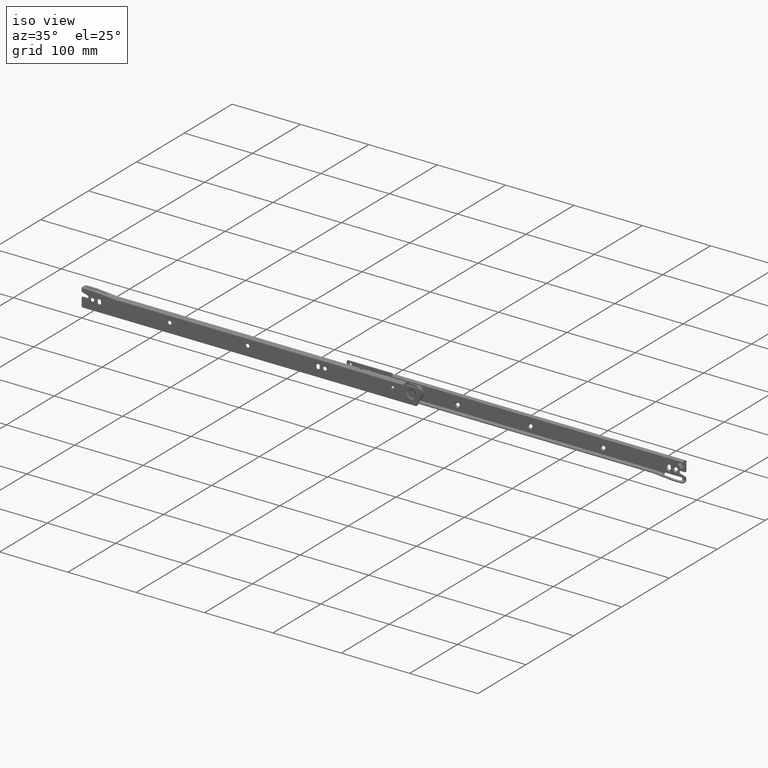
[diagram: clean part render]
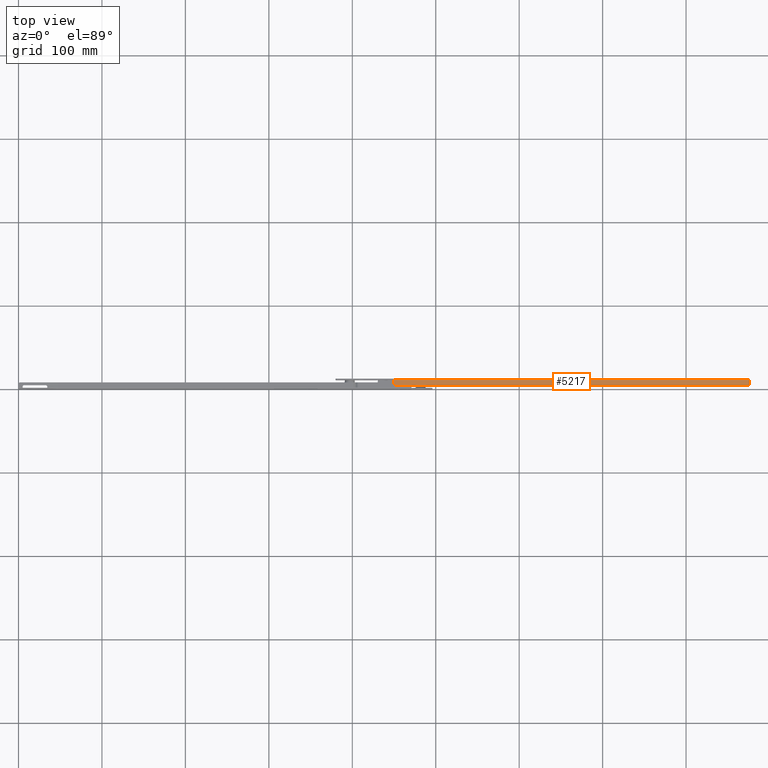
[diagram: tour spotlight — one face highlighted and labeled with its STEP entity id]
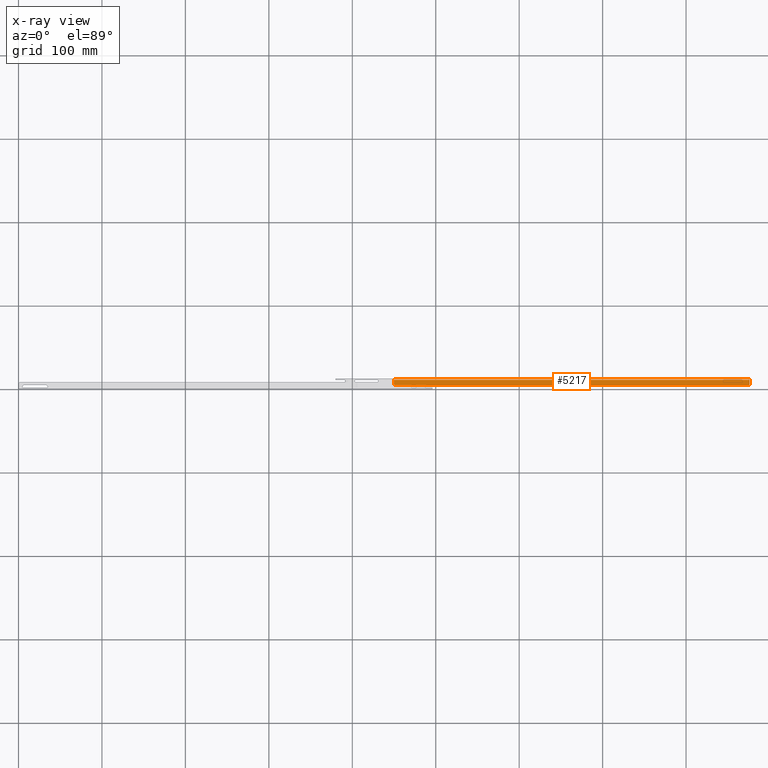
[diagram: x-ray of the same camera — body ghosted, this tour face saturated]
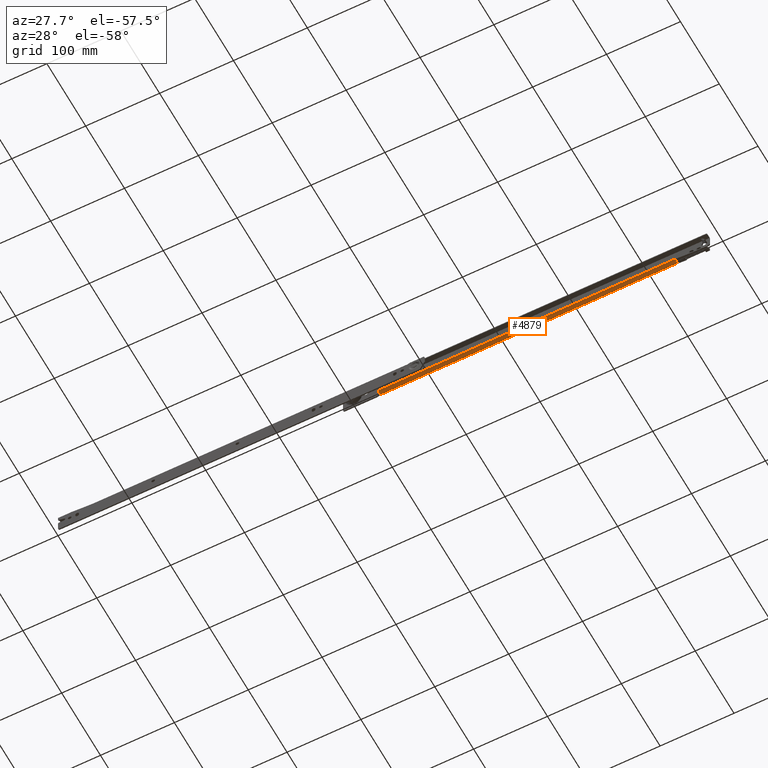
[diagram: tour spotlight — one face highlighted and labeled with its STEP entity id]
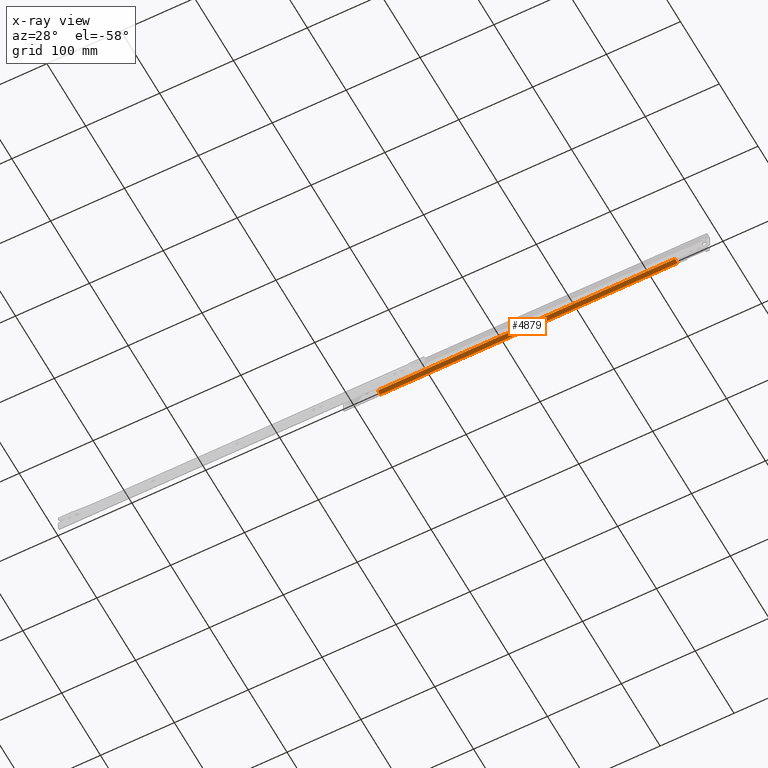
[diagram: x-ray of the same camera — body ghosted, this tour face saturated]
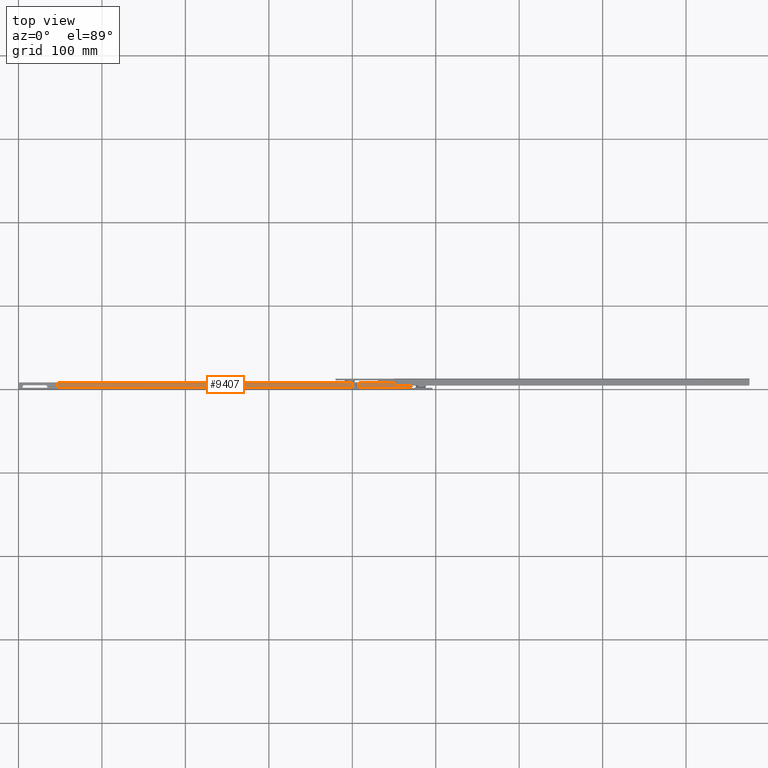
[diagram: tour spotlight — one face highlighted and labeled with its STEP entity id]
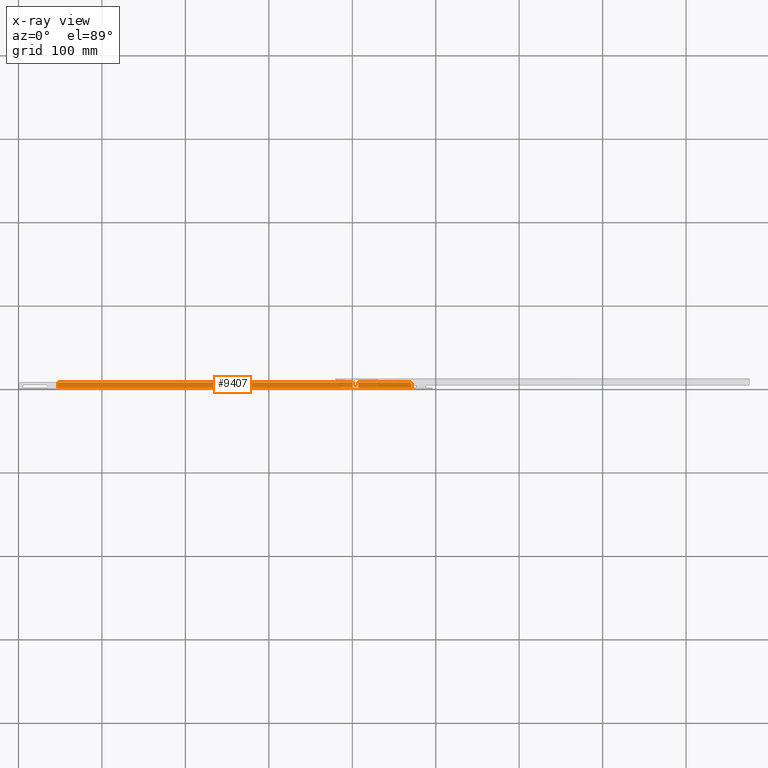
[diagram: x-ray of the same camera — body ghosted, this tour face saturated]
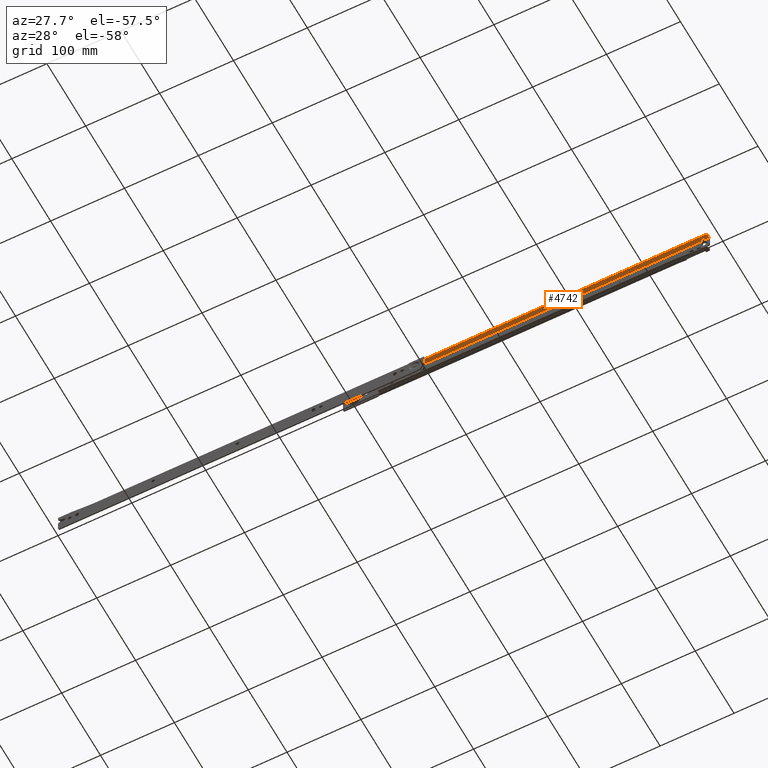
[diagram: tour spotlight — one face highlighted and labeled with its STEP entity id]
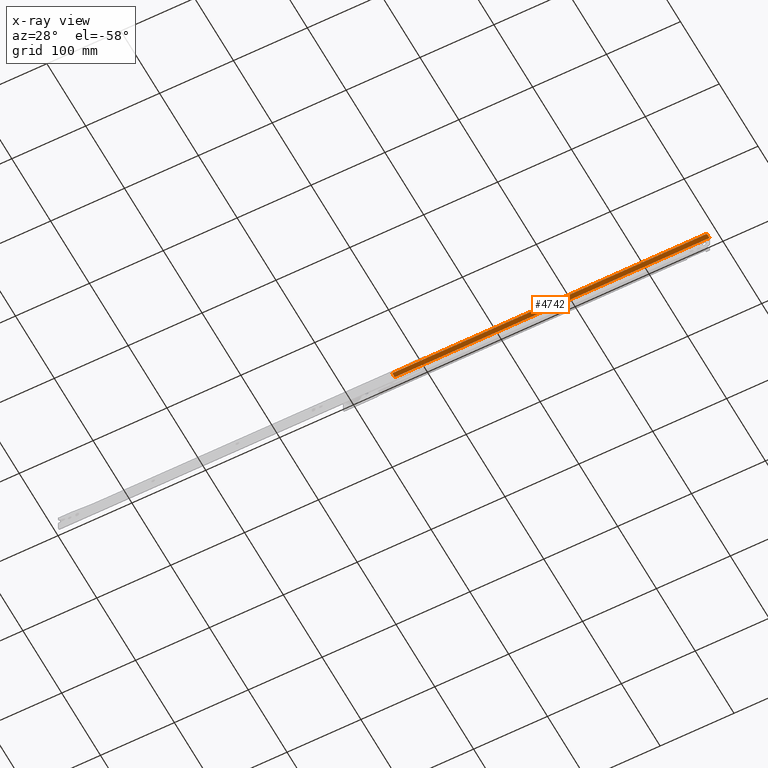
[diagram: x-ray of the same camera — body ghosted, this tour face saturated]
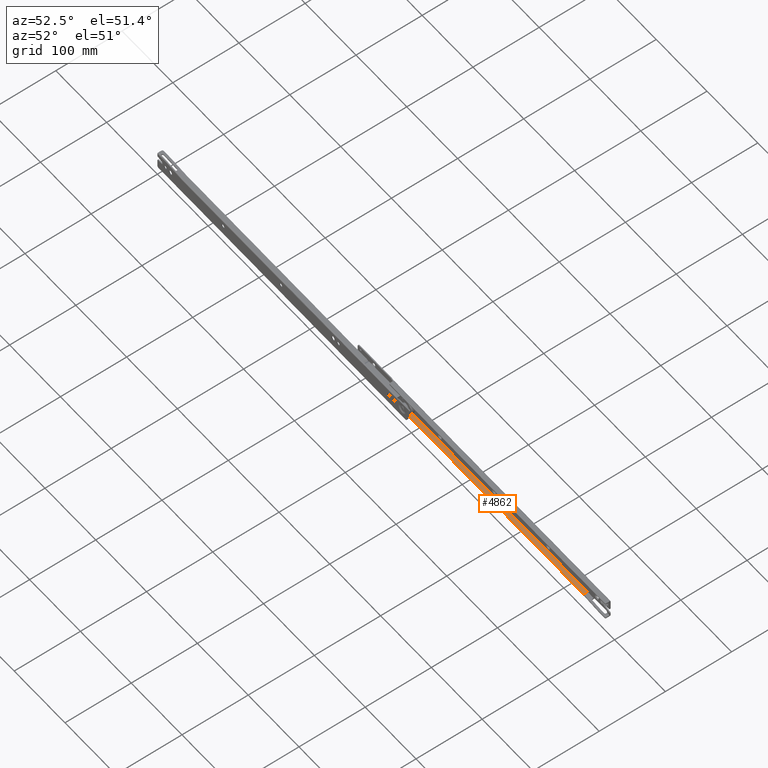
[diagram: tour spotlight — one face highlighted and labeled with its STEP entity id]
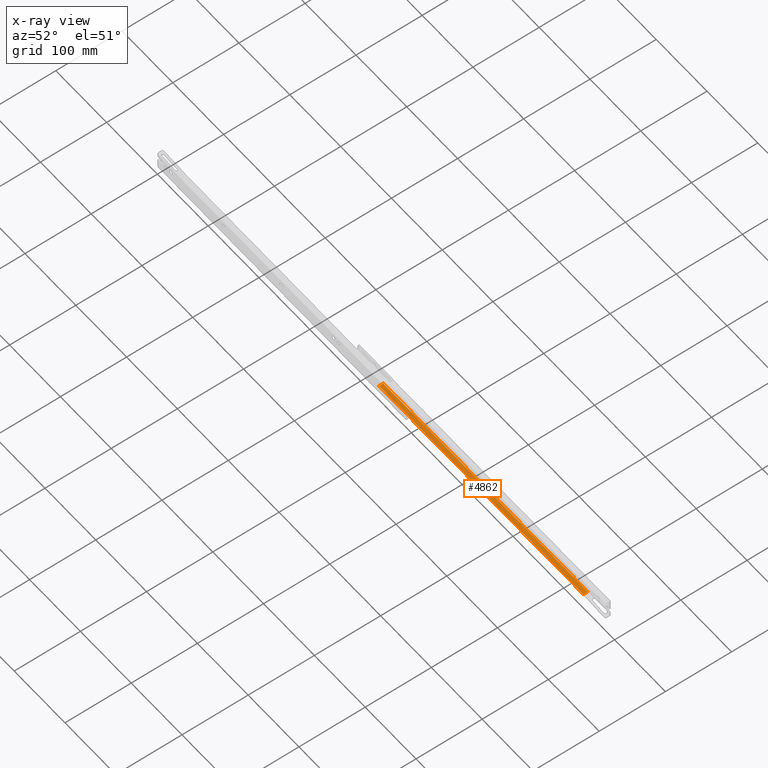
[diagram: x-ray of the same camera — body ghosted, this tour face saturated]
A machine part: a face-by-face anatomy tour. The part has 185 B-rep faces; the first image is the clean iso view, then the 5 largest visible faces are spotlighted one at a time (largest first), each with its STEP entity span.

Face 1 — top view, entity #5217. An x-ray twin of the same camera follows (body ghosted, this face saturated) — the face is partly hidden behind the body. In plain terms, the highlighted face is a freeform B-spline surface patch.
Definition (entity closure, byte-faithful):
#2840=CARTESIAN_POINT('',(75.0,5.999999999999770,27.500000000000000));
#2841=VERTEX_POINT('',#2840);
#2842=CARTESIAN_POINT('',(76.500000000000000,4.499999999999725,27.500000000000000));
#2843=VERTEX_POINT('',#2842);
#2844=CARTESIAN_POINT('',(75.0,5.999999999999770,27.500000000000000));
#2845=CARTESIAN_POINT('',(75.000000000000014,4.499999999999769,27.500000000000004));
#2846=CARTESIAN_POINT('',(76.500000000000000,4.499999999999770,27.500000000000000));
#2854=(BOUNDED_CURVE()B_SPLINE_CURVE(2,(#2844,#2845,#2846),.UNSPECIFIED.,.F.,.U.)CURVE()GEOMETRIC_REPRESENTATION_ITEM()QUASI_UNIFORM_CURVE()RATIONAL_B_SPLINE_CURVE((1.0,0.707106781186548,1.0))REPRESENTATION_ITEM(''));
#2855=EDGE_CURVE('',#2841,#2843,#2854,.T.);
#3890=CARTESIAN_POINT('',(75.0,10.999999999999799,27.500000000000000));
#3891=VERTEX_POINT('',#3890);
#3905=CARTESIAN_POINT('',(501.0,10.999999999999799,27.500000000000000));
#3906=VERTEX_POINT('',#3905);
#3907=CARTESIAN_POINT('',(501.0,10.999999999999799,27.500000000000000));
#3908=CARTESIAN_POINT('',(75.0,10.999999999999799,27.500000000000000));
#3909=QUASI_UNIFORM_CURVE('',1,(#3907,#3908),.UNSPECIFIED.,.F.,.U.);
#3910=EDGE_CURVE('',#3906,#3891,#3909,.T.);
#4386=CARTESIAN_POINT('',(501.0,5.999999999999780,27.500000000000000));
#4387=VERTEX_POINT('',#4386);
#4393=CARTESIAN_POINT('',(499.500000000000000,4.499999999999725,27.500000000000000));
#4394=VERTEX_POINT('',#4393);
#4395=CARTESIAN_POINT('',(499.500000000000000,4.499999999999770,27.500000000000000));
#4396=CARTESIAN_POINT('',(500.999999999999890,4.499999999999769,27.500000000000004));
#4397=CARTESIAN_POINT('',(501.0,5.999999999999770,27.500000000000000));
#4405=(BOUNDED_CURVE()B_SPLINE_CURVE(2,(#4395,#4396,#4397),.UNSPECIFIED.,.F.,.U.)CURVE()GEOMETRIC_REPRESENTATION_ITEM()QUASI_UNIFORM_CURVE()RATIONAL_B_SPLINE_CURVE((1.0,0.707106781186548,1.0))REPRESENTATION_ITEM(''));
#4406=EDGE_CURVE('',#4394,#4387,#4405,.T.);
#4700=CARTESIAN_POINT('',(499.500000000000000,4.499999999999725,27.500000000000000));
#4701=CARTESIAN_POINT('',(76.500000000000000,4.499999999999725,27.500000000000000));
#4702=QUASI_UNIFORM_CURVE('',1,(#4700,#4701),.UNSPECIFIED.,.F.,.U.);
#4703=EDGE_CURVE('',#4394,#2843,#4702,.T.);
#5184=CARTESIAN_POINT('',(501.0,5.999999999999780,27.500000000000000));
#5185=CARTESIAN_POINT('',(501.0,10.999999999999799,27.500000000000000));
#5186=QUASI_UNIFORM_CURVE('',1,(#5184,#5185),.UNSPECIFIED.,.F.,.U.);
#5187=EDGE_CURVE('',#4387,#3906,#5186,.T.);
#5200=CARTESIAN_POINT('',(53.721300825670660,4.175325012597982,27.500000000000000));
#5201=CARTESIAN_POINT('',(522.278710600539740,4.175325012597982,27.500000000000000));
#5202=CARTESIAN_POINT('',(53.721300825670660,11.324675161745130,27.500000000000000));
#5203=CARTESIAN_POINT('',(522.278710600539740,11.324675161745130,27.500000000000000));
#5204=B_SPLINE_SURFACE_WITH_KNOTS('',1,1,((#5200,#5202),(#5201,#5203)),.UNSPECIFIED.,.F.,.F.,.U.,(2,2),(2,2),(0.0,468.557409774869090),(0.0,7.149350149147146),.UNSPECIFIED.);
#5205=CARTESIAN_POINT('',(75.0,10.999999999999799,27.500000000000000));
#5206=CARTESIAN_POINT('',(75.0,5.999999999999770,27.500000000000000));
#5207=QUASI_UNIFORM_CURVE('',1,(#5205,#5206),.UNSPECIFIED.,.F.,.U.);
#5208=EDGE_CURVE('',#3891,#2841,#5207,.T.);
#5209=ORIENTED_EDGE('',*,*,#5208,.T.);
#5210=ORIENTED_EDGE('',*,*,#2855,.T.);
#5211=ORIENTED_EDGE('',*,*,#4703,.F.);
#5212=ORIENTED_EDGE('',*,*,#4406,.T.);
#5213=ORIENTED_EDGE('',*,*,#5187,.T.);
#5214=ORIENTED_EDGE('',*,*,#3910,.T.);
#5215=EDGE_LOOP('',(#5209,#5210,#5211,#5212,#5213,#5214));
#5216=FACE_OUTER_BOUND('',#5215,.T.);
#5217=ADVANCED_FACE('',(#5216),#5204,.T.);

Face 2 — auxiliary view, entity #4879. An x-ray twin of the same camera follows (body ghosted, this face saturated) — the face is partly hidden behind the body. In plain terms, the highlighted face is a freeform B-spline surface patch.
Definition (entity closure, byte-faithful):
#2779=CARTESIAN_POINT('',(57.0,4.499999999999775,1.500000000000000));
#2780=VERTEX_POINT('',#2779);
#2781=CARTESIAN_POINT('',(55.500000000000000,5.999999999999780,1.500000000000000));
#2782=VERTEX_POINT('',#2781);
#2783=CARTESIAN_POINT('',(57.0,4.499999999999781,1.500000000000000));
#2784=CARTESIAN_POINT('',(55.500000000000000,4.499999999999781,1.500000000000000));
#2785=CARTESIAN_POINT('',(55.500000000000000,5.999999999999780,1.500000000000000));
#2793=(BOUNDED_CURVE()B_SPLINE_CURVE(2,(#2783,#2784,#2785),.UNSPECIFIED.,.F.,.U.)CURVE()GEOMETRIC_REPRESENTATION_ITEM()QUASI_UNIFORM_CURVE()RATIONAL_B_SPLINE_CURVE((1.0,0.707106781186548,1.0))REPRESENTATION_ITEM(''));
#2794=EDGE_CURVE('',#2780,#2782,#2793,.T.);
#3142=CARTESIAN_POINT('',(55.500000000000000,11.0,1.500000000000000));
#3143=VERTEX_POINT('',#3142);
#3144=CARTESIAN_POINT('',(55.500000000000000,11.0,1.500000000000000));
#3145=CARTESIAN_POINT('',(55.500000000000000,5.999999999999780,1.500000000000000));
#3146=QUASI_UNIFORM_CURVE('',1,(#3144,#3145),.UNSPECIFIED.,.F.,.U.);
#3147=EDGE_CURVE('',#3143,#2782,#3146,.T.);
#3734=CARTESIAN_POINT('',(458.0,10.999999999999680,1.500000000000000));
#3735=VERTEX_POINT('',#3734);
#3749=CARTESIAN_POINT('',(55.500000000000000,11.0,1.500000000000000));
#3750=CARTESIAN_POINT('',(458.0,10.999999999999680,1.500000000000000));
#3751=QUASI_UNIFORM_CURVE('',1,(#3749,#3750),.UNSPECIFIED.,.F.,.U.);
#3752=EDGE_CURVE('',#3143,#3735,#3751,.T.);
#4756=CARTESIAN_POINT('',(458.0,4.499999999999725,1.500000000000000));
#4757=VERTEX_POINT('',#4756);
#4758=CARTESIAN_POINT('',(458.0,4.499999999999725,1.500000000000000));
#4759=CARTESIAN_POINT('',(57.0,4.499999999999775,1.500000000000000));
#4760=QUASI_UNIFORM_CURVE('',1,(#4758,#4759),.UNSPECIFIED.,.F.,.U.);
#4761=EDGE_CURVE('',#4757,#2780,#4760,.T.);
#4863=CARTESIAN_POINT('',(478.104874219876880,4.175325012597972,1.500000000000000));
#4864=CARTESIAN_POINT('',(35.395114984231853,4.175325012597972,1.500000000000000));
#4865=CARTESIAN_POINT('',(478.104874219876880,11.324675161745340,1.500000000000000));
#4866=CARTESIAN_POINT('',(35.395114984231853,11.324675161745340,1.500000000000000));
#4867=B_SPLINE_SURFACE_WITH_KNOTS('',1,1,((#4863,#4865),(#4864,#4866)),.UNSPECIFIED.,.F.,.F.,.U.,(2,2),(2,2),(0.0,442.709759235644980),(0.0,7.149350149147366),.UNSPECIFIED.);
#4868=ORIENTED_EDGE('',*,*,#4761,.T.);
#4869=ORIENTED_EDGE('',*,*,#2794,.T.);
#4870=ORIENTED_EDGE('',*,*,#3147,.F.);
#4871=ORIENTED_EDGE('',*,*,#3752,.T.);
#4872=CARTESIAN_POINT('',(458.0,4.499999999999725,1.500000000000000));
#4873=CARTESIAN_POINT('',(458.0,10.999999999999680,1.500000000000000));
#4874=QUASI_UNIFORM_CURVE('',1,(#4872,#4873),.UNSPECIFIED.,.F.,.U.);
#4875=EDGE_CURVE('',#4757,#3735,#4874,.T.);
#4876=ORIENTED_EDGE('',*,*,#4875,.F.);
#4877=EDGE_LOOP('',(#4868,#4869,#4870,#4871,#4876));
#4878=FACE_OUTER_BOUND('',#4877,.T.);
#4879=ADVANCED_FACE('',(#4878),#4867,.T.);

Face 3 — top view, entity #9407. An x-ray twin of the same camera follows (body ghosted, this face saturated) — the face is partly hidden behind the body. In plain terms, the highlighted face is a freeform B-spline surface patch.
Definition (entity closure, byte-faithful):
#7640=CARTESIAN_POINT('',(471.0,6.0,24.0));
#7641=VERTEX_POINT('',#7640);
#7642=CARTESIAN_POINT('',(469.0,8.0,24.0));
#7643=VERTEX_POINT('',#7642);
#7644=CARTESIAN_POINT('',(471.0,6.0,24.0));
#7645=CARTESIAN_POINT('',(471.0,8.0,23.999999999999996));
#7646=CARTESIAN_POINT('',(469.0,8.0,24.0));
#7654=(BOUNDED_CURVE()B_SPLINE_CURVE(2,(#7644,#7645,#7646),.UNSPECIFIED.,.F.,.U.)CURVE()GEOMETRIC_REPRESENTATION_ITEM()QUASI_UNIFORM_CURVE()RATIONAL_B_SPLINE_CURVE((1.0,0.707106781186548,1.0))REPRESENTATION_ITEM(''));
#7655=EDGE_CURVE('',#7641,#7643,#7654,.T.);
#7701=CARTESIAN_POINT('',(400.056778559224030,8.0,24.0));
#7702=VERTEX_POINT('',#7701);
#7718=CARTESIAN_POINT('',(400.056778559224030,2.0,24.0));
#7719=VERTEX_POINT('',#7718);
#7720=CARTESIAN_POINT('',(400.056778559224030,2.0,24.0));
#7721=CARTESIAN_POINT('',(400.056778559224030,8.0,24.0));
#7722=QUASI_UNIFORM_CURVE('',1,(#7720,#7721),.UNSPECIFIED.,.F.,.U.);
#7723=EDGE_CURVE('',#7719,#7702,#7722,.T.);
#7764=CARTESIAN_POINT('',(407.507881440775980,8.0,24.0));
#7765=VERTEX_POINT('',#7764);
#7786=CARTESIAN_POINT('',(407.507881440775980,2.0,24.0));
#7787=VERTEX_POINT('',#7786);
#7801=CARTESIAN_POINT('',(407.507881440775980,8.0,24.0));
#7802=CARTESIAN_POINT('',(407.507881440775980,2.0,24.0));
#7803=QUASI_UNIFORM_CURVE('',1,(#7801,#7802),.UNSPECIFIED.,.F.,.U.);
#7804=EDGE_CURVE('',#7765,#7787,#7803,.T.);
#8700=CARTESIAN_POINT('',(471.0,1.500000000000000,24.0));
#8701=VERTEX_POINT('',#8700);
#8715=CARTESIAN_POINT('',(47.0,1.500000000000055,24.0));
#8716=VERTEX_POINT('',#8715);
#8717=CARTESIAN_POINT('',(47.0,1.500000000000055,24.0));
#8718=CARTESIAN_POINT('',(471.0,1.500000000000000,24.0));
#8719=QUASI_UNIFORM_CURVE('',1,(#8717,#8718),.UNSPECIFIED.,.F.,.U.);
#8720=EDGE_CURVE('',#8716,#8701,#8719,.T.);
#9235=CARTESIAN_POINT('',(47.0,8.0,24.0));
#9236=VERTEX_POINT('',#9235);
#9237=CARTESIAN_POINT('',(47.0,8.0,24.0));
#9238=CARTESIAN_POINT('',(47.0,1.500000000000055,24.0));
#9239=QUASI_UNIFORM_CURVE('',1,(#9237,#9238),.UNSPECIFIED.,.F.,.U.);
#9240=EDGE_CURVE('',#9236,#8716,#9239,.T.);
#9335=CARTESIAN_POINT('',(471.0,1.500000000000000,24.0));
#9336=CARTESIAN_POINT('',(471.0,6.0,24.0));
#9337=QUASI_UNIFORM_CURVE('',1,(#9335,#9336),.UNSPECIFIED.,.F.,.U.);
#9338=EDGE_CURVE('',#8701,#7641,#9337,.T.);
#9354=CARTESIAN_POINT('',(400.056778559224030,8.0,24.0));
#9355=CARTESIAN_POINT('',(47.0,8.0,24.0));
#9356=QUASI_UNIFORM_CURVE('',1,(#9354,#9355),.UNSPECIFIED.,.F.,.U.);
#9357=EDGE_CURVE('',#7702,#9236,#9356,.T.);
#9364=CARTESIAN_POINT('',(469.0,8.0,24.0));
#9365=CARTESIAN_POINT('',(407.507881440775980,8.0,24.0));
#9366=QUASI_UNIFORM_CURVE('',1,(#9364,#9365),.UNSPECIFIED.,.F.,.U.);
#9367=EDGE_CURVE('',#7643,#7765,#9366,.T.);
#9387=CARTESIAN_POINT('',(25.821200821794289,1.175325012598261,24.0));
#9388=CARTESIAN_POINT('',(492.178810550772030,1.175325012598261,24.0));
#9389=CARTESIAN_POINT('',(25.821200821794289,8.324675161745324,24.0));
#9390=CARTESIAN_POINT('',(492.178810550772030,8.324675161745324,24.0));
#9391=B_SPLINE_SURFACE_WITH_KNOTS('',1,1,((#9387,#9389),(#9388,#9390)),.UNSPECIFIED.,.F.,.F.,.U.,(2,2),(2,2),(0.0,466.357609728977820),(0.0,7.149350149147063),.UNSPECIFIED.);
#9392=ORIENTED_EDGE('',*,*,#9338,.T.);
#9393=ORIENTED_EDGE('',*,*,#7655,.T.);
#9394=ORIENTED_EDGE('',*,*,#9367,.T.);
#9395=ORIENTED_EDGE('',*,*,#7804,.T.);
#9396=CARTESIAN_POINT('',(400.056778559224030,2.0,24.0));
#9397=CARTESIAN_POINT('',(407.507881440775980,2.0,24.0));
#9398=QUASI_UNIFORM_CURVE('',1,(#9396,#9397),.UNSPECIFIED.,.F.,.U.);
#9399=EDGE_CURVE('',#7719,#7787,#9398,.T.);
#9400=ORIENTED_EDGE('',*,*,#9399,.F.);
#9401=ORIENTED_EDGE('',*,*,#7723,.T.);
#9402=ORIENTED_EDGE('',*,*,#9357,.T.);
#9403=ORIENTED_EDGE('',*,*,#9240,.T.);
#9404=ORIENTED_EDGE('',*,*,#8720,.T.);
#9405=EDGE_LOOP('',(#9392,#9393,#9394,#9395,#9400,#9401,#9402,#9403,#9404));
#9406=FACE_OUTER_BOUND('',#9405,.T.);
#9407=ADVANCED_FACE('',(#9406),#9391,.T.);

Face 4 — auxiliary view, entity #4742. An x-ray twin of the same camera follows (body ghosted, this face saturated) — the face is partly hidden behind the body. In plain terms, the highlighted face is a freeform B-spline surface patch.
Definition (entity closure, byte-faithful):
#2857=CARTESIAN_POINT('',(75.0,5.999999999999770,26.0));
#2858=VERTEX_POINT('',#2857);
#2864=CARTESIAN_POINT('',(76.500000000000000,4.499999999999725,26.0));
#2865=VERTEX_POINT('',#2864);
#2866=CARTESIAN_POINT('',(76.500000000000000,4.499999999999770,26.0));
#2867=CARTESIAN_POINT('',(75.000000000000014,4.499999999999769,26.000000000000004));
#2868=CARTESIAN_POINT('',(75.0,5.999999999999770,26.0));
#2876=(BOUNDED_CURVE()B_SPLINE_CURVE(2,(#2866,#2867,#2868),.UNSPECIFIED.,.F.,.U.)CURVE()GEOMETRIC_REPRESENTATION_ITEM()QUASI_UNIFORM_CURVE()RATIONAL_B_SPLINE_CURVE((1.0,0.707106781186548,1.0))REPRESENTATION_ITEM(''));
#2877=EDGE_CURVE('',#2865,#2858,#2876,.T.);
#3122=CARTESIAN_POINT('',(75.0,11.0,26.0));
#3123=VERTEX_POINT('',#3122);
#4369=CARTESIAN_POINT('',(501.0,5.999999999999780,26.0));
#4370=VERTEX_POINT('',#4369);
#4371=CARTESIAN_POINT('',(499.500000000000000,4.499999999999725,26.0));
#4372=VERTEX_POINT('',#4371);
#4373=CARTESIAN_POINT('',(501.0,5.999999999999770,26.0));
#4374=CARTESIAN_POINT('',(500.999999999999890,4.499999999999769,26.000000000000004));
#4375=CARTESIAN_POINT('',(499.500000000000000,4.499999999999770,26.0));
#4383=(BOUNDED_CURVE()B_SPLINE_CURVE(2,(#4373,#4374,#4375),.UNSPECIFIED.,.F.,.U.)CURVE()GEOMETRIC_REPRESENTATION_ITEM()QUASI_UNIFORM_CURVE()RATIONAL_B_SPLINE_CURVE((1.0,0.707106781186548,1.0))REPRESENTATION_ITEM(''));
#4384=EDGE_CURVE('',#4370,#4372,#4383,.T.);
#4706=CARTESIAN_POINT('',(76.500000000000000,4.499999999999725,26.0));
#4707=CARTESIAN_POINT('',(499.500000000000000,4.499999999999725,26.0));
#4708=QUASI_UNIFORM_CURVE('',1,(#4706,#4707),.UNSPECIFIED.,.F.,.U.);
#4709=EDGE_CURVE('',#2865,#4372,#4708,.T.);
#4715=CARTESIAN_POINT('',(53.721300825670660,4.175325012597972,26.0));
#4716=CARTESIAN_POINT('',(522.278710600539740,4.175325012597972,26.0));
#4717=CARTESIAN_POINT('',(53.721300825670660,11.324675161745340,26.0));
#4718=CARTESIAN_POINT('',(522.278710600539740,11.324675161745340,26.0));
#4719=B_SPLINE_SURFACE_WITH_KNOTS('',1,1,((#4715,#4717),(#4716,#4718)),.UNSPECIFIED.,.F.,.F.,.U.,(2,2),(2,2),(0.0,468.557409774869090),(0.0,7.149350149147366),.UNSPECIFIED.);
#4720=ORIENTED_EDGE('',*,*,#4709,.F.);
#4721=ORIENTED_EDGE('',*,*,#2877,.T.);
#4722=CARTESIAN_POINT('',(75.0,5.999999999999770,26.0));
#4723=CARTESIAN_POINT('',(75.0,11.0,26.0));
#4724=QUASI_UNIFORM_CURVE('',1,(#4722,#4723),.UNSPECIFIED.,.F.,.U.);
#4725=EDGE_CURVE('',#2858,#3123,#4724,.T.);
#4726=ORIENTED_EDGE('',*,*,#4725,.T.);
#4727=CARTESIAN_POINT('',(501.0,11.0,26.0));
#4728=VERTEX_POINT('',#4727);
#4729=CARTESIAN_POINT('',(75.0,11.0,26.0));
#4730=CARTESIAN_POINT('',(501.0,11.0,26.0));
#4731=QUASI_UNIFORM_CURVE('',1,(#4729,#4730),.UNSPECIFIED.,.F.,.U.);
#4732=EDGE_CURVE('',#3123,#4728,#4731,.T.);
#4733=ORIENTED_EDGE('',*,*,#4732,.T.);
#4734=CARTESIAN_POINT('',(501.0,5.999999999999780,26.0));
#4735=CARTESIAN_POINT('',(501.0,11.0,26.0));
#4736=QUASI_UNIFORM_CURVE('',1,(#4734,#4735),.UNSPECIFIED.,.F.,.U.);
#4737=EDGE_CURVE('',#4370,#4728,#4736,.T.);
#4738=ORIENTED_EDGE('',*,*,#4737,.F.);
#4739=ORIENTED_EDGE('',*,*,#4384,.T.);
#4740=EDGE_LOOP('',(#4720,#4721,#4726,#4733,#4738,#4739));
#4741=FACE_OUTER_BOUND('',#4740,.T.);
#4742=ADVANCED_FACE('',(#4741),#4719,.F.);

Face 5 — auxiliary view, entity #4862. An x-ray twin of the same camera follows (body ghosted, this face saturated) — the face is partly hidden behind the body. In plain terms, the highlighted face is a freeform B-spline surface patch.
Definition (entity closure, byte-faithful):
#2796=CARTESIAN_POINT('',(57.0,4.499999999999775,3.0));
#2797=VERTEX_POINT('',#2796);
#2803=CARTESIAN_POINT('',(55.500000000000000,5.999999999999780,3.0));
#2804=VERTEX_POINT('',#2803);
#2805=CARTESIAN_POINT('',(55.500000000000000,5.999999999999780,3.0));
#2806=CARTESIAN_POINT('',(55.500000000000000,4.499999999999781,3.0));
#2807=CARTESIAN_POINT('',(57.0,4.499999999999781,3.0));
#2815=(BOUNDED_CURVE()B_SPLINE_CURVE(2,(#2805,#2806,#2807),.UNSPECIFIED.,.F.,.U.)CURVE()GEOMETRIC_REPRESENTATION_ITEM()QUASI_UNIFORM_CURVE()RATIONAL_B_SPLINE_CURVE((1.0,0.707106781186548,1.0))REPRESENTATION_ITEM(''));
#2816=EDGE_CURVE('',#2804,#2797,#2815,.T.);
#3150=CARTESIAN_POINT('',(55.500000000000000,11.0,3.0));
#3151=VERTEX_POINT('',#3150);
#3152=CARTESIAN_POINT('',(55.500000000000000,5.999999999999780,3.0));
#3153=CARTESIAN_POINT('',(55.500000000000000,11.0,3.0));
#3154=QUASI_UNIFORM_CURVE('',1,(#3152,#3153),.UNSPECIFIED.,.F.,.U.);
#3155=EDGE_CURVE('',#2804,#3151,#3154,.T.);
#4748=CARTESIAN_POINT('',(458.066830999999980,4.499999999999725,3.0));
#4749=VERTEX_POINT('',#4748);
#4750=CARTESIAN_POINT('',(57.0,4.499999999999775,3.0));
#4751=CARTESIAN_POINT('',(458.066830999999980,4.499999999999725,3.0));
#4752=QUASI_UNIFORM_CURVE('',1,(#4750,#4751),.UNSPECIFIED.,.F.,.U.);
#4753=EDGE_CURVE('',#2797,#4749,#4752,.T.);
#4827=CARTESIAN_POINT('',(458.066830999999980,11.0,3.0));
#4828=VERTEX_POINT('',#4827);
#4834=CARTESIAN_POINT('',(458.066830999999980,4.499999999999725,3.0));
#4835=CARTESIAN_POINT('',(458.066830999999980,11.0,3.0));
#4836=QUASI_UNIFORM_CURVE('',1,(#4834,#4835),.UNSPECIFIED.,.F.,.U.);
#4837=EDGE_CURVE('',#4749,#4828,#4836,.T.);
#4846=CARTESIAN_POINT('',(35.391787571802652,4.175325012597972,3.0));
#4847=CARTESIAN_POINT('',(478.175054225881180,4.175325012597972,3.0));
#4848=CARTESIAN_POINT('',(35.391787571802652,11.324675161745340,3.0));
#4849=CARTESIAN_POINT('',(478.175054225881180,11.324675161745340,3.0));
#4850=B_SPLINE_SURFACE_WITH_KNOTS('',1,1,((#4846,#4848),(#4847,#4849)),.UNSPECIFIED.,.F.,.F.,.U.,(2,2),(2,2),(0.0,442.783266654078600),(0.0,7.149350149147366),.UNSPECIFIED.);
#4851=ORIENTED_EDGE('',*,*,#3155,.F.);
#4852=ORIENTED_EDGE('',*,*,#2816,.T.);
#4853=ORIENTED_EDGE('',*,*,#4753,.T.);
#4854=ORIENTED_EDGE('',*,*,#4837,.T.);
#4855=CARTESIAN_POINT('',(55.500000000000000,11.0,3.0));
#4856=CARTESIAN_POINT('',(458.066830999999980,11.0,3.0));
#4857=QUASI_UNIFORM_CURVE('',1,(#4855,#4856),.UNSPECIFIED.,.F.,.U.);
#4858=EDGE_CURVE('',#3151,#4828,#4857,.T.);
#4859=ORIENTED_EDGE('',*,*,#4858,.F.);
#4860=EDGE_LOOP('',(#4851,#4852,#4853,#4854,#4859));
#4861=FACE_OUTER_BOUND('',#4860,.T.);
#4862=ADVANCED_FACE('',(#4861),#4850,.T.);